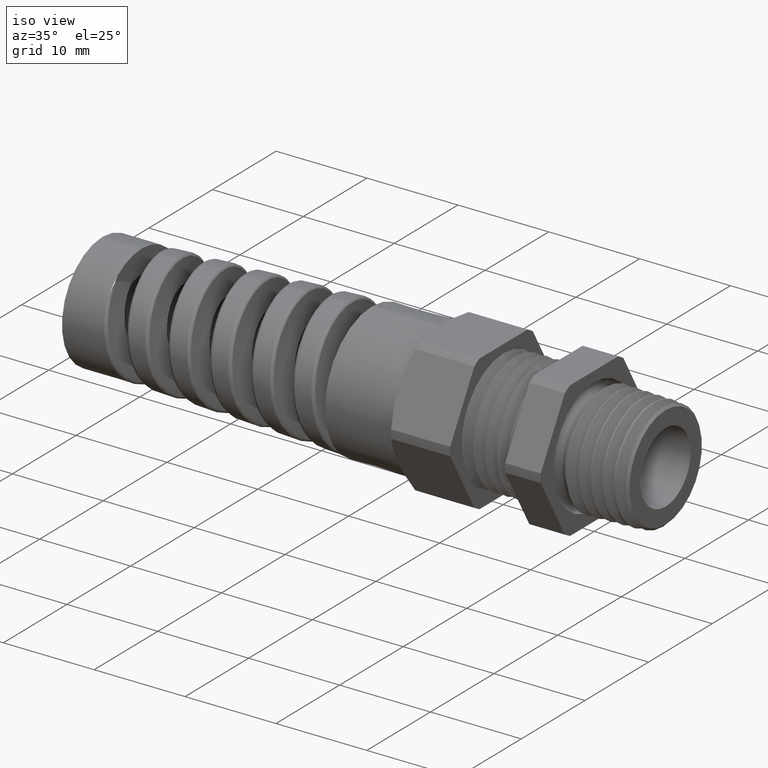
[diagram: clean part render]
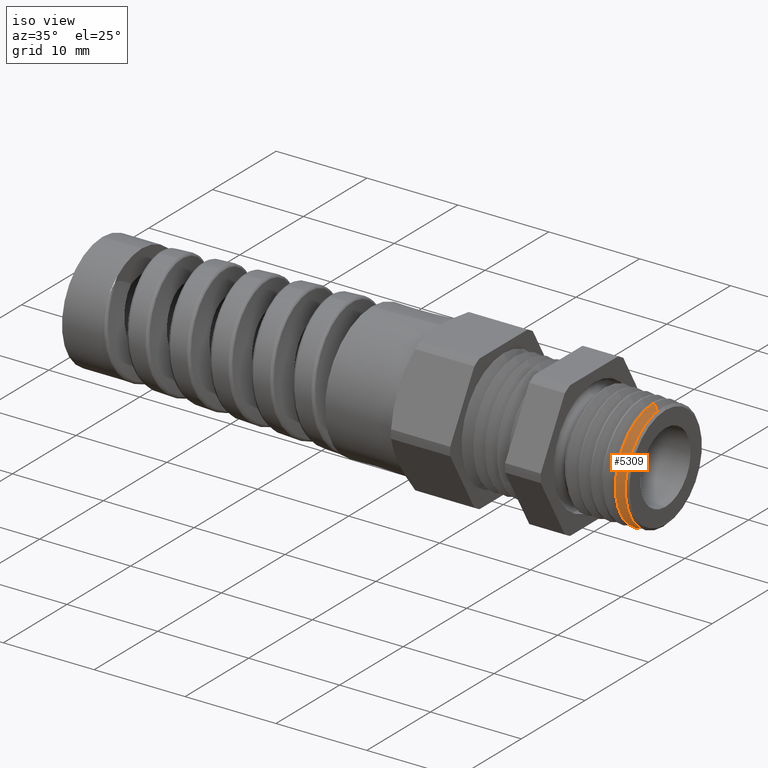
[diagram: same view with one face highlighted and labeled with its STEP entity id]
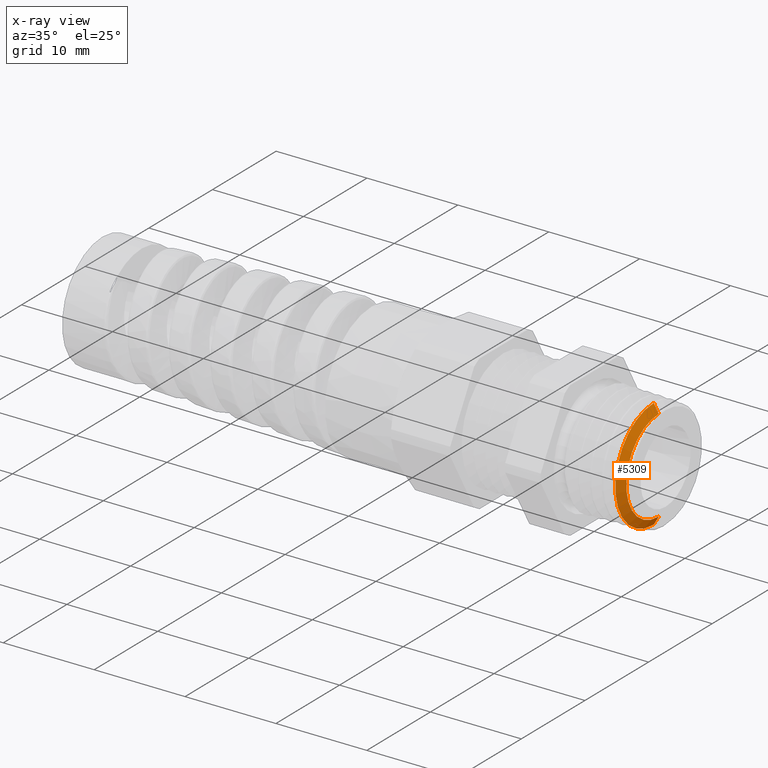
[diagram: x-ray of the same camera — body ghosted, the highlighted face saturated]
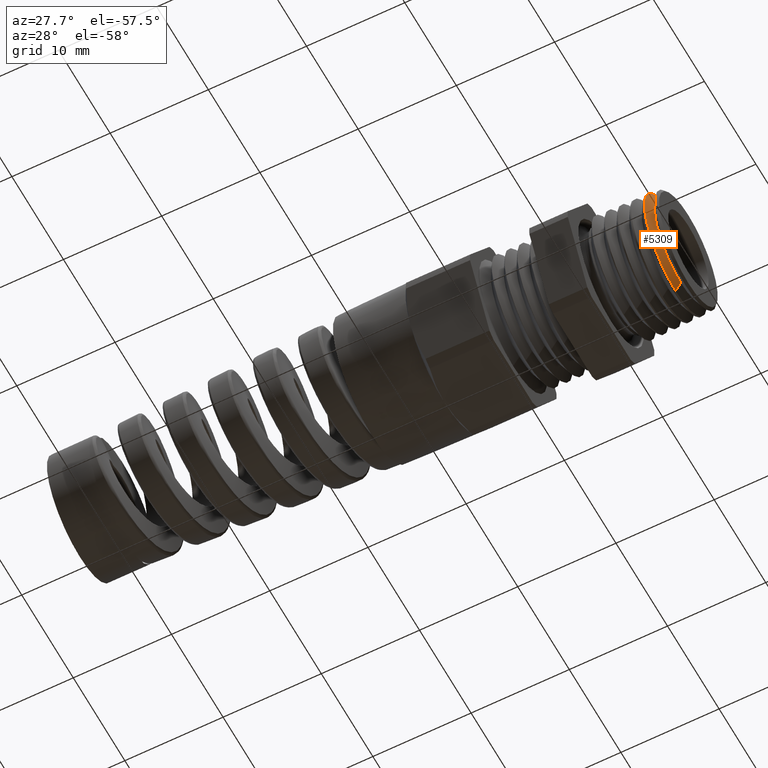
[diagram: same view with one face highlighted and labeled with its STEP entity id]
A machine part, iso view. The second image highlights one B-rep face of the part: STEP entity #5309.
The next image is the same camera in x-ray: the body ghosted, the highlighted face saturated — about 0% of this face is hidden behind the body in this view.
A second angle (auxiliary view) of the same face is appended — the face is thin or edge-on in the first view.
In plain terms, the highlighted conical surface has half-angle 60 deg.
Its self-contained STEP definition (entity closure, byte-faithful):
#72 = EDGE_CURVE ( 'NONE', #5683, #5524, #935, .T. ) ;
#878 = CARTESIAN_POINT ( 'NONE',  ( 0.2589143838735095700, 0.0000000000000000000, 0.0000000000000000000 ) ) ;
#932 = DIRECTION ( 'NONE',  ( 0.0000000000000000000, 0.0000000000000000000, 1.000000000000000000 ) ) ;
#933 = DIRECTION ( 'NONE',  ( 1.000000000000000000, 0.0000000000000000000, 0.0000000000000000000 ) ) ;
#934 = AXIS2_PLACEMENT_3D ( 'NONE', #878, #933, #932 ) ;
#935 = CIRCLE ( 'NONE', #934, 0.2382200882507539100 ) ;
#2273 = CARTESIAN_POINT ( 'NONE',  ( 0.2803924526490038100, 2.689563606499657500E-017, -0.2010189818831388000 ) ) ;
#2641 = DIRECTION ( 'NONE',  ( 0.0000000000000000000, 0.0000000000000000000, 1.000000000000000000 ) ) ;
#2642 = DIRECTION ( 'NONE',  ( -1.000000000000000000, 0.0000000000000000000, 0.0000000000000000000 ) ) ;
#2651 = AXIS2_PLACEMENT_3D ( 'NONE', #2652, #2642, #2641 ) ;
#2652 = CARTESIAN_POINT ( 'NONE',  ( 0.2550000000000004500, 0.0000000000000000000, 0.0000000000000000000 ) ) ;
#2654 = CONICAL_SURFACE ( 'NONE', #2651, 0.2450000000000000000, 1.047197551196601900 ) ;
#2655 = FACE_OUTER_BOUND ( 'NONE', #5307, .T. ) ;
#2657 = DIRECTION ( 'NONE',  ( 0.0000000000000000000, 0.0000000000000000000, 1.000000000000000000 ) ) ;
#2658 = DIRECTION ( 'NONE',  ( -1.000000000000000000, 0.0000000000000000000, 0.0000000000000000000 ) ) ;
#2659 = CARTESIAN_POINT ( 'NONE',  ( 0.2803924526490038100, 0.0000000000000000000, 0.0000000000000000000 ) ) ;
#2660 = AXIS2_PLACEMENT_3D ( 'NONE', #2659, #2658, #2657 ) ;
#2661 = CIRCLE ( 'NONE', #2660, 0.2010189818831388000 ) ;
#2959 = CARTESIAN_POINT ( 'NONE',  ( 0.2589143838735095700, 2.918625249945247100E-017, -0.2382200882507539100 ) ) ;
#2994 = CARTESIAN_POINT ( 'NONE',  ( 0.2803924526490038100, 0.0000000000000000000, 0.2010189818831388000 ) ) ;
#3010 = DIRECTION ( 'NONE',  ( -0.4999999999999963900, 1.060575238724909300E-016, -0.8660254037844405900 ) ) ;
#3011 = VECTOR ( 'NONE', #3010, 39.37007874015748900 ) ;
#3012 = CARTESIAN_POINT ( 'NONE',  ( 0.2550000000000004500, 3.000384657911014900E-017, -0.2450000000000000000 ) ) ;
#3013 = LINE ( 'NONE', #3012, #3011 ) ;
#3242 = CARTESIAN_POINT ( 'NONE',  ( 0.2589143838735095700, 0.0000000000000000000, 0.2382200882507539100 ) ) ;
#3300 = DIRECTION ( 'NONE',  ( -0.4999999999999963900, 0.0000000000000000000, 0.8660254037844405900 ) ) ;
#3301 = VECTOR ( 'NONE', #3300, 39.37007874015748900 ) ;
#3302 = CARTESIAN_POINT ( 'NONE',  ( 0.2550000000000004500, 0.0000000000000000000, 0.2450000000000000000 ) ) ;
#3303 = LINE ( 'NONE', #3302, #3301 ) ;
#5093 = VERTEX_POINT ( 'NONE', #2273 ) ;
#5297 = ORIENTED_EDGE ( 'NONE', *, *, #5542, .F. ) ;
#5298 = ORIENTED_EDGE ( 'NONE', *, *, #5300, .T. ) ;
#5300 = EDGE_CURVE ( 'NONE', #5093, #5564, #2661, .T. ) ;
#5301 = ORIENTED_EDGE ( 'NONE', *, *, #5685, .T. ) ;
#5307 = EDGE_LOOP ( 'NONE', ( #5297, #5298, #5301, #5452 ) ) ;
#5309 = ADVANCED_FACE ( 'NONE', ( #2655 ), #2654, .T. ) ;
#5452 = ORIENTED_EDGE ( 'NONE', *, *, #72, .T. ) ;
#5524 = VERTEX_POINT ( 'NONE', #2959 ) ;
#5542 = EDGE_CURVE ( 'NONE', #5093, #5524, #3013, .T. ) ;
#5564 = VERTEX_POINT ( 'NONE', #2994 ) ;
#5683 = VERTEX_POINT ( 'NONE', #3242 ) ;
#5685 = EDGE_CURVE ( 'NONE', #5564, #5683, #3303, .T. ) ;